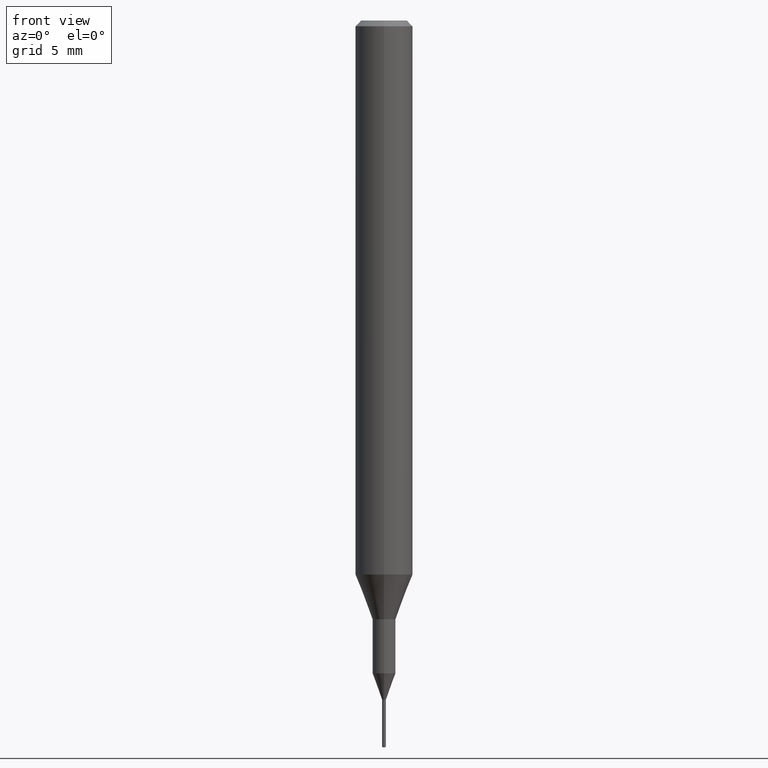
[diagram: clean part render]
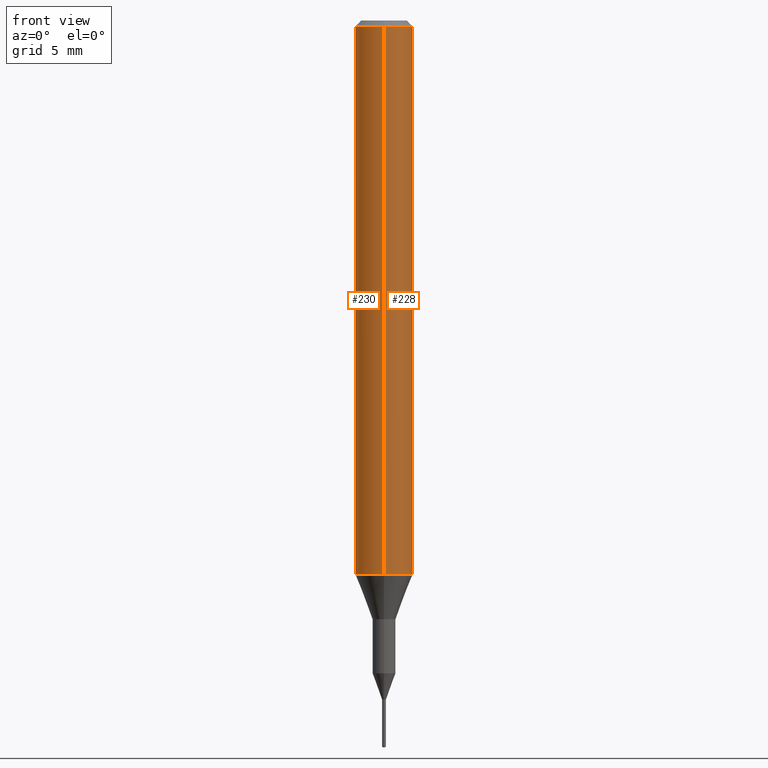
[diagram: same view with one multi-face feature highlighted, each face labeled with its STEP entity id]
A machine part, front view. The highlighted faces form ONE feature: a constant-radius fillet chain: 2 tangent blend faces with common blend radius 1.5 mm. The faces share edges in the B-rep.
Their STEP definitions:
[1] entity #230 (Cylinder):
#124=VERTEX_POINT('',#302);
#134=EDGE_CURVE('',#124,#240,#314,.T.);
#142=EDGE_CURVE('',#162,#188,#322,.T.);
#162=VERTEX_POINT('',#344);
#188=VERTEX_POINT('',#375);
#224=EDGE_CURVE('',#188,#124,#415,.T.);
#226=EDGE_CURVE('',#162,#240,#417,.T.);
#230=ADVANCED_FACE('',(#422),#423,.T.);
#240=VERTEX_POINT('',#433);
#302=CARTESIAN_POINT('',(0.0,1.5,-0.300000000000001));
#314=LINE('',#511,#512);
#322=LINE('',#526,#527);
#344=CARTESIAN_POINT('',(1.83690953073357E-016,-1.5,-28.955));
#375=CARTESIAN_POINT('',(1.83690953073357E-016,-1.5,-0.300000000000001));
#415=CIRCLE('',#642,1.5);
#417=CIRCLE('',#645,1.5);
#422=FACE_OUTER_BOUND('',#650,.T.);
#423=CYLINDRICAL_SURFACE('',#651,1.5);
#433=CARTESIAN_POINT('',(0.0,1.5,-28.955));
#511=CARTESIAN_POINT('',(-1.83690953073357E-016,1.5,-14.6275));
#512=VECTOR('',#744,1.0);
#526=CARTESIAN_POINT('',(1.83690953073357E-016,-1.5,-14.6275));
#527=VECTOR('',#750,1.0);
#642=AXIS2_PLACEMENT_3D('',#864,#865,#866);
#645=AXIS2_PLACEMENT_3D('',#867,#868,#869);
#650=EDGE_LOOP('',(#879,#880,#881,#882));
#651=AXIS2_PLACEMENT_3D('',#883,#884,#885);
#744=DIRECTION('',(0.0,0.0,-1.0));
#750=DIRECTION('',(-0.0,-0.0,1.0));
#864=CARTESIAN_POINT('',(0.0,0.0,-0.300000000000001));
#865=DIRECTION('',(0.0,0.0,-1.0));
#866=DIRECTION('',(0.0,1.0,0.0));
#867=CARTESIAN_POINT('',(0.0,0.0,-28.955));
#868=DIRECTION('',(0.0,0.0,-1.0));
#869=DIRECTION('',(0.0,1.0,0.0));
#879=ORIENTED_EDGE('',*,*,#134,.T.);
#880=ORIENTED_EDGE('',*,*,#226,.F.);
#881=ORIENTED_EDGE('',*,*,#142,.T.);
#882=ORIENTED_EDGE('',*,*,#224,.T.);
#883=CARTESIAN_POINT('',(0.0,0.0,-14.6275));
#884=DIRECTION('',(-0.0,-0.0,1.0));
#885=DIRECTION('',(0.0,1.0,0.0));
[2] entity #228 (Cylinder):
#124=VERTEX_POINT('',#302);
#130=EDGE_CURVE('',#240,#162,#309,.T.);
#134=EDGE_CURVE('',#124,#240,#314,.T.);
#142=EDGE_CURVE('',#162,#188,#322,.T.);
#162=VERTEX_POINT('',#344);
#188=VERTEX_POINT('',#375);
#228=ADVANCED_FACE('',(#419),#420,.T.);
#240=VERTEX_POINT('',#433);
#248=EDGE_CURVE('',#124,#188,#443,.T.);
#302=CARTESIAN_POINT('',(0.0,1.5,-0.300000000000001));
#309=CIRCLE('',#505,1.5);
#314=LINE('',#511,#512);
#322=LINE('',#526,#527);
#344=CARTESIAN_POINT('',(1.83690953073357E-016,-1.5,-28.955));
#375=CARTESIAN_POINT('',(1.83690953073357E-016,-1.5,-0.300000000000001));
#419=FACE_OUTER_BOUND('',#647,.T.);
#420=CYLINDRICAL_SURFACE('',#648,1.5);
#433=CARTESIAN_POINT('',(0.0,1.5,-28.955));
#443=CIRCLE('',#679,1.5);
#505=AXIS2_PLACEMENT_3D('',#733,#734,#735);
#511=CARTESIAN_POINT('',(-1.83690953073357E-016,1.5,-14.6275));
#512=VECTOR('',#744,1.0);
#526=CARTESIAN_POINT('',(1.83690953073357E-016,-1.5,-14.6275));
#527=VECTOR('',#750,1.0);
#647=EDGE_LOOP('',(#871,#872,#873,#874));
#648=AXIS2_PLACEMENT_3D('',#875,#876,#877);
#679=AXIS2_PLACEMENT_3D('',#905,#906,#907);
#733=CARTESIAN_POINT('',(0.0,0.0,-28.955));
#734=DIRECTION('',(0.0,0.0,-1.0));
#735=DIRECTION('',(0.0,1.0,0.0));
#744=DIRECTION('',(0.0,0.0,-1.0));
#750=DIRECTION('',(-0.0,-0.0,1.0));
#871=ORIENTED_EDGE('',*,*,#134,.F.);
#872=ORIENTED_EDGE('',*,*,#248,.T.);
#873=ORIENTED_EDGE('',*,*,#142,.F.);
#874=ORIENTED_EDGE('',*,*,#130,.F.);
#875=CARTESIAN_POINT('',(0.0,0.0,-14.6275));
#876=DIRECTION('',(-0.0,-0.0,1.0));
#877=DIRECTION('',(0.0,1.0,0.0));
#905=CARTESIAN_POINT('',(0.0,0.0,-0.300000000000001));
#906=DIRECTION('',(0.0,0.0,-1.0));
#907=DIRECTION('',(0.0,1.0,0.0));